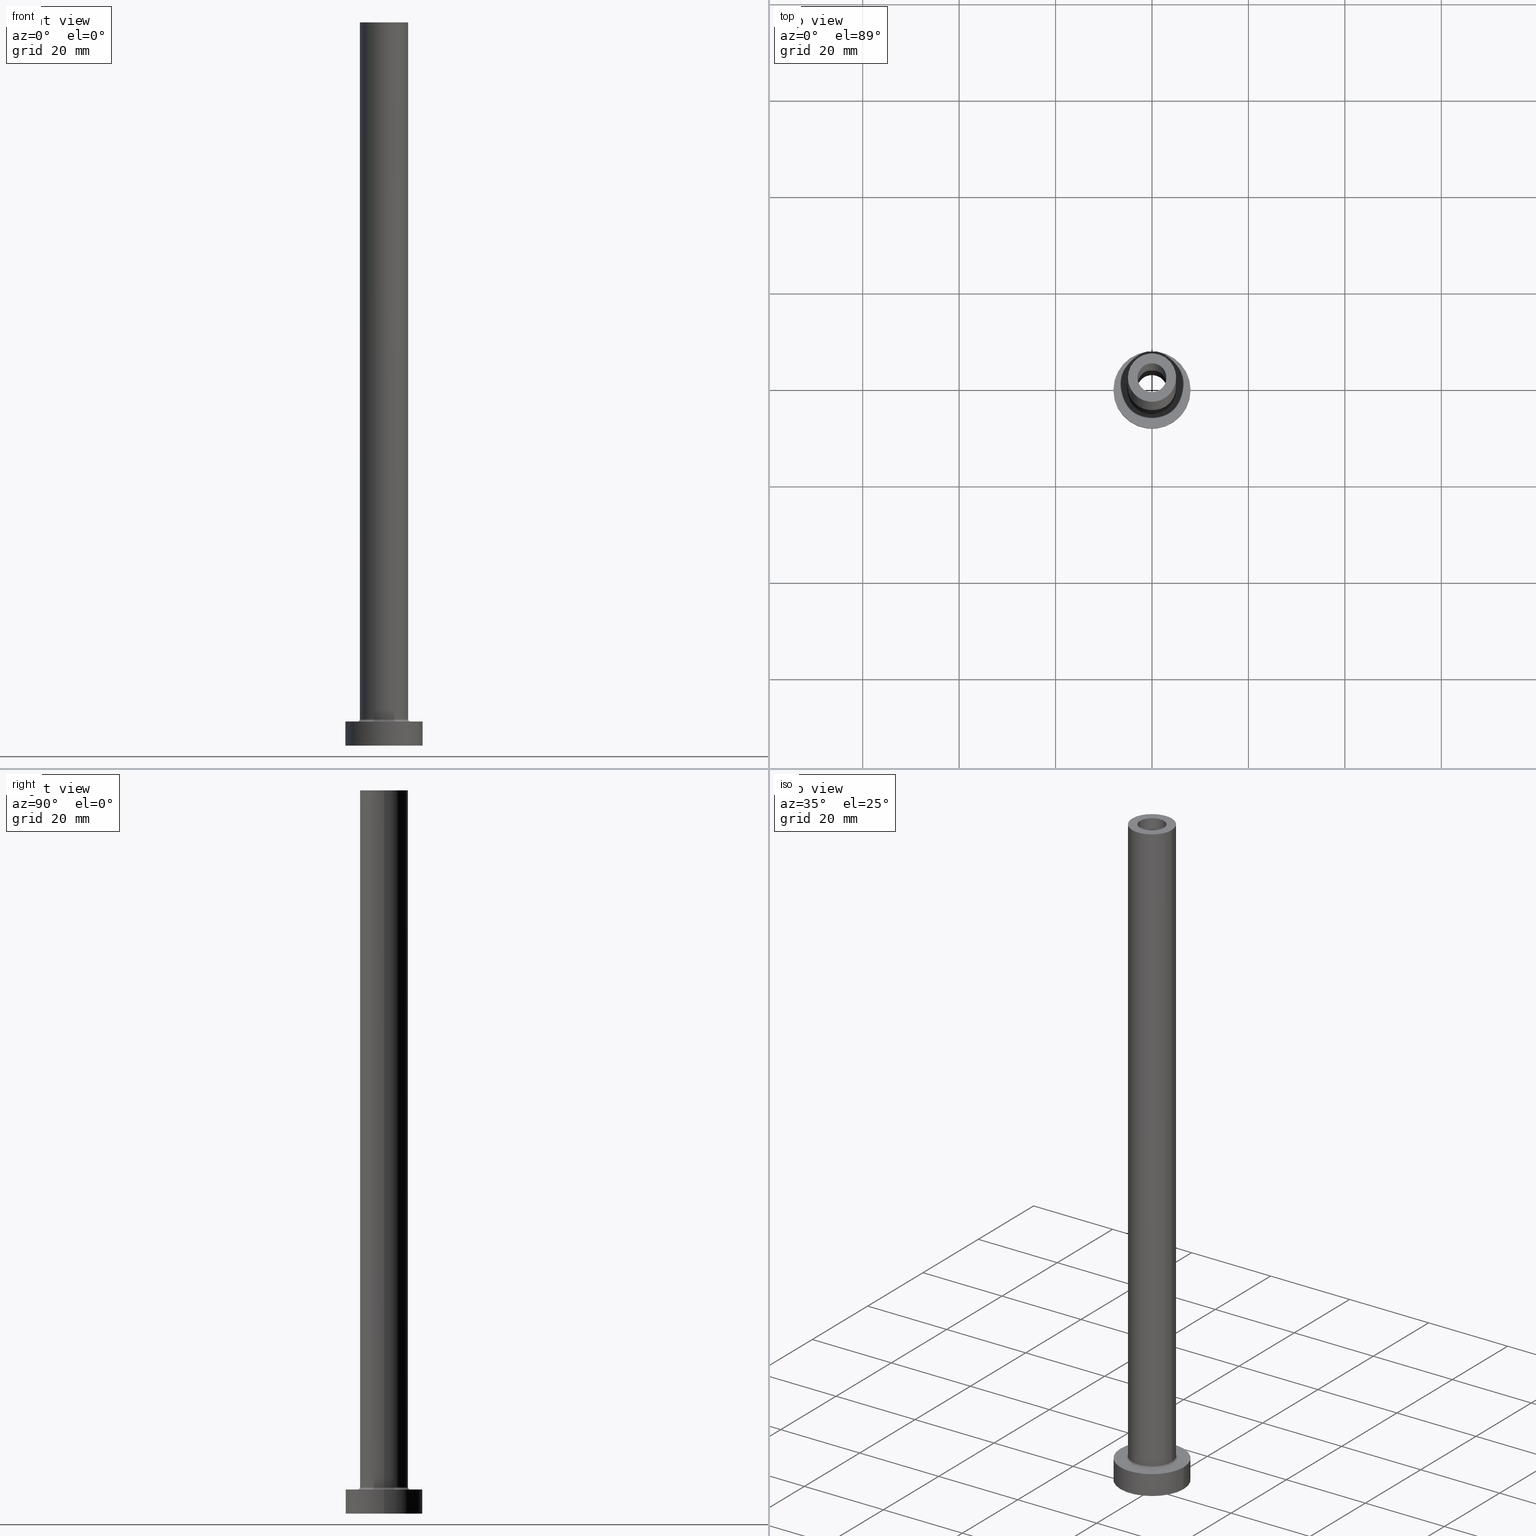
[diagram: canonical four-view strip — front | top / right | iso, engineering-drawing reading convention]
A machine part, canonical four-view strip (front | top / right | iso — engineering-drawing reading convention). The complete STEP part file that produces these views, byte-faithful:
ISO-10303-21;
HEADER;
FILE_DESCRIPTION (( 'STEP AP203' ),
    '1' );
FILE_NAME ('c2c9.STEP',
    '2023-02-13T10:09:58',
    ( '' ),
    ( '' ),
    'SwSTEP 2.0',
    'SolidWorks 2019',
    '' );
FILE_SCHEMA (( 'CONFIG_CONTROL_DESIGN' ));
ENDSEC;

DATA;
#1 = DIRECTION ( 'NONE',  ( 1.000000000000000000, 0.000000000000000000, 0.000000000000000000 ) ) ;
#2 = CARTESIAN_POINT ( 'NONE',  ( -3.150000000000000355, 0.000000000000000000, 0.000000000000000000 ) ) ;
#3 = EDGE_CURVE ( 'NONE', #65, #243, #122, .T. ) ;
#4 = CARTESIAN_POINT ( 'NONE',  ( 0.000000000000000000, 0.000000000000000000, 0.000000000000000000 ) ) ;
#5 = CARTESIAN_POINT ( 'NONE',  ( 5.000000000000000000, 6.123233995736766282E-16, 150.0000000000000000 ) ) ;
#6 = AXIS2_PLACEMENT_3D ( 'NONE', #124, #284, #131 ) ;
#7 = LOCAL_TIME ( 11, 9, 58.00000000000000000, #310 ) ;
#8 = CARTESIAN_POINT ( 'NONE',  ( 8.000000000000000000, 9.797174393178825657E-16, 5.000000000000000000 ) ) ;
#9 = EDGE_LOOP ( 'NONE', ( #267, #20 ) ) ;
#10 = EDGE_LOOP ( 'NONE', ( #296, #393, #386, #280 ) ) ;
#11 = ADVANCED_FACE ( 'NONE', ( #137 ), #366, .F. ) ;
#12 = APPLICATION_CONTEXT ( 'configuration controlled 3d designs of mechanical parts and assemblies' ) ;
#13 = AXIS2_PLACEMENT_3D ( 'NONE', #428, #215, #355 ) ;
#14 =( GEOMETRIC_REPRESENTATION_CONTEXT ( 3 ) GLOBAL_UNCERTAINTY_ASSIGNED_CONTEXT ( ( #92 ) ) GLOBAL_UNIT_ASSIGNED_CONTEXT ( ( #454, #237, #254 ) ) REPRESENTATION_CONTEXT ( 'NONE', 'WORKASPACE' ) );
#15 = CARTESIAN_POINT ( 'NONE',  ( 3.150000000000000355, 3.857637417314162196E-16, 0.000000000000000000 ) ) ;
#16 = ORIENTED_EDGE ( 'NONE', *, *, #165, .T. ) ;
#17 = CC_DESIGN_PERSON_AND_ORGANIZATION_ASSIGNMENT ( #374, #411, ( #340 ) ) ;
#18 = PERSON_AND_ORGANIZATION_ROLE ( 'design_supplier' ) ;
#19 = DIRECTION ( 'NONE',  ( 1.000000000000000000, 0.000000000000000000, -0.000000000000000000 ) ) ;
#20 = ORIENTED_EDGE ( 'NONE', *, *, #107, .F. ) ;
#21 = PRODUCT_DEFINITION ( 'NEZN�M�', '', #414, #364 ) ;
#22 = PLANE ( 'NONE',  #114 ) ;
#23 = ORIENTED_EDGE ( 'NONE', *, *, #234, .T. ) ;
#24 = ORIENTED_EDGE ( 'NONE', *, *, #99, .F. ) ;
#25 = EDGE_LOOP ( 'NONE', ( #133, #76, #277, #391 ) ) ;
#26 = CIRCLE ( 'NONE', #149, 5.500000000000000000 ) ;
#27 = AXIS2_PLACEMENT_3D ( 'NONE', #334, #203, #74 ) ;
#28 = CARTESIAN_POINT ( 'NONE',  ( 0.000000000000000000, 0.000000000000000000, 150.0000000000000000 ) ) ;
#29 = CARTESIAN_POINT ( 'NONE',  ( 0.000000000000000000, 0.000000000000000000, 0.000000000000000000 ) ) ;
#30 = DIRECTION ( 'NONE',  ( -0.000000000000000000, -0.000000000000000000, -1.000000000000000000 ) ) ;
#31 = EDGE_LOOP ( 'NONE', ( #447, #357, #349, #370 ) ) ;
#32 = DIRECTION ( 'NONE',  ( 0.000000000000000000, 0.000000000000000000, 1.000000000000000000 ) ) ;
#33 = AXIS2_PLACEMENT_3D ( 'NONE', #40, #51, #117 ) ;
#34 = LINE ( 'NONE', #214, #442 ) ;
#35 = PLANE ( 'NONE',  #380 ) ;
#36 = LINE ( 'NONE', #279, #174 ) ;
#37 = CIRCLE ( 'NONE', #259, 8.000000000000000000 ) ;
#38 = ORIENTED_EDGE ( 'NONE', *, *, #223, .T. ) ;
#39 = ADVANCED_FACE ( 'NONE', ( #407 ), #183, .F. ) ;
#40 = CARTESIAN_POINT ( 'NONE',  ( 0.000000000000000000, 0.000000000000000000, 150.0000000000000000 ) ) ;
#41 = APPROVAL_DATE_TIME ( #427, #148 ) ;
#42 = CARTESIAN_POINT ( 'NONE',  ( -3.000000000000000444, 0.000000000000000000, 150.0000000000000000 ) ) ;
#43 = DIRECTION ( 'NONE',  ( 1.224646799147353207E-16, 1.000000000000000000, -0.000000000000000000 ) ) ;
#44 = CALENDAR_DATE ( 2023, 13, 2 ) ;
#45 = VERTEX_POINT ( 'NONE', #401 ) ;
#46 = VERTEX_POINT ( 'NONE', #367 ) ;
#47 = FACE_OUTER_BOUND ( 'NONE', #31, .T. ) ;
#48 = AXIS2_PLACEMENT_3D ( 'NONE', #399, #43, #245 ) ;
#49 = CLOSED_SHELL ( 'NONE', ( #332, #209, #11, #452, #373, #95, #415, #338, #75, #213, #39, #271, #425, #52 ) ) ;
#50 = ORIENTED_EDGE ( 'NONE', *, *, #70, .F. ) ;
#51 = DIRECTION ( 'NONE',  ( 0.000000000000000000, 0.000000000000000000, 1.000000000000000000 ) ) ;
#52 = ADVANCED_FACE ( 'NONE', ( #406 ), #53, .F. ) ;
#53 = CYLINDRICAL_SURFACE ( 'NONE', #56, 3.000000000000000444 ) ;
#54 = PLANE ( 'NONE',  #339 ) ;
#55 = CIRCLE ( 'NONE', #250, 5.000000000000000000 ) ;
#56 = AXIS2_PLACEMENT_3D ( 'NONE', #294, #444, #135 ) ;
#57 = EDGE_CURVE ( 'NONE', #177, #46, #255, .T. ) ;
#58 = DIRECTION ( 'NONE',  ( 0.000000000000000000, 0.000000000000000000, 1.000000000000000000 ) ) ;
#59 = DIRECTION ( 'NONE',  ( 0.000000000000000000, 0.000000000000000000, 1.000000000000000000 ) ) ;
#60 = ORIENTED_EDGE ( 'NONE', *, *, #139, .F. ) ;
#61 = EDGE_CURVE ( 'NONE', #232, #127, #37, .T. ) ;
#62 = AXIS2_PLACEMENT_3D ( 'NONE', #244, #85, #162 ) ;
#63 = FACE_OUTER_BOUND ( 'NONE', #97, .T. ) ;
#64 = FACE_OUTER_BOUND ( 'NONE', #202, .T. ) ;
#65 = VERTEX_POINT ( 'NONE', #241 ) ;
#66 = CYLINDRICAL_SURFACE ( 'NONE', #198, 3.150000000000000355 ) ;
#67 = COORDINATED_UNIVERSAL_TIME_OFFSET ( 1, 0, .AHEAD. ) ;
#68 = DIRECTION ( 'NONE',  ( 1.000000000000000000, 0.000000000000000000, 0.000000000000000000 ) ) ;
#69 = CALENDAR_DATE ( 2023, 13, 2 ) ;
#70 = EDGE_CURVE ( 'NONE', #143, #127, #36, .T. ) ;
#71 = AXIS2_PLACEMENT_3D ( 'NONE', #189, #73, #348 ) ;
#72 = DIRECTION ( 'NONE',  ( 0.000000000000000000, 0.000000000000000000, -1.000000000000000000 ) ) ;
#73 = DIRECTION ( 'NONE',  ( -0.000000000000000000, -0.000000000000000000, -1.000000000000000000 ) ) ;
#74 = DIRECTION ( 'NONE',  ( -1.000000000000000000, 0.000000000000000000, 0.000000000000000000 ) ) ;
#75 = ADVANCED_FACE ( 'NONE', ( #147 ), #388, .T. ) ;
#76 = ORIENTED_EDGE ( 'NONE', *, *, #234, .F. ) ;
#77 = ORIENTED_EDGE ( 'NONE', *, *, #61, .F. ) ;
#78 = CARTESIAN_POINT ( 'NONE',  ( 3.000000000000000444, 3.673940397442059868E-16, 150.0000000000000000 ) ) ;
#79 = CIRCLE ( 'NONE', #158, 3.000000000000000444 ) ;
#80 = CALENDAR_DATE ( 2023, 13, 2 ) ;
#81 = CC_DESIGN_SECURITY_CLASSIFICATION ( #340, ( #414 ) ) ;
#82 = CARTESIAN_POINT ( 'NONE',  ( 0.000000000000000000, 0.000000000000000000, 5.500000000000005329 ) ) ;
#83 = DIRECTION ( 'NONE',  ( -1.000000000000000000, 0.000000000000000000, 0.000000000000000000 ) ) ;
#84 = VERTEX_POINT ( 'NONE', #42 ) ;
#85 = DIRECTION ( 'NONE',  ( 0.000000000000000000, 0.000000000000000000, 1.000000000000000000 ) ) ;
#86 = CARTESIAN_POINT ( 'NONE',  ( 0.000000000000000000, 0.000000000000000000, 0.000000000000000000 ) ) ;
#87 = ORIENTED_EDGE ( 'NONE', *, *, #179, .F. ) ;
#88 = FACE_OUTER_BOUND ( 'NONE', #303, .T. ) ;
#89 = CARTESIAN_POINT ( 'NONE',  ( -3.150000000000000355, 0.000000000000000000, 113.9095454429505025 ) ) ;
#90 = PERSON ( 'NEUR�EN�', 'NEUR�EN�', 'NEUR�EN�', ('NEUR�EN�'), ('NEUR�EN�'), ('NEUR�EN�') ) ;
#91 = DIRECTION ( 'NONE',  ( 0.000000000000000000, 0.000000000000000000, -1.000000000000000000 ) ) ;
#92 = UNCERTAINTY_MEASURE_WITH_UNIT (LENGTH_MEASURE( 1.000000000000000082E-05 ), #454, 'distance_accuracy_value', 'NONE');
#93 = DIRECTION ( 'NONE',  ( 0.000000000000000000, 0.000000000000000000, 1.000000000000000000 ) ) ;
#94 = ORIENTED_EDGE ( 'NONE', *, *, #448, .T. ) ;
#95 = ADVANCED_FACE ( 'NONE', ( #419 ), #282, .T. ) ;
#96 = LOCAL_TIME ( 11, 9, 58.00000000000000000, #67 ) ;
#97 = EDGE_LOOP ( 'NONE', ( #342, #287, #102, #458 ) ) ;
#98 = AXIS2_PLACEMENT_3D ( 'NONE', #397, #167, #408 ) ;
#99 = EDGE_CURVE ( 'NONE', #461, #143, #298, .T. ) ;
#100 = AXIS2_PLACEMENT_3D ( 'NONE', #219, #119, #359 ) ;
#101 = DIRECTION ( 'NONE',  ( 1.000000000000000000, 0.000000000000000000, 0.000000000000000000 ) ) ;
#102 = ORIENTED_EDGE ( 'NONE', *, *, #128, .T. ) ;
#103 = ORIENTED_EDGE ( 'NONE', *, *, #440, .T. ) ;
#104 = DIRECTION ( 'NONE',  ( 0.000000000000000000, 0.000000000000000000, 1.000000000000000000 ) ) ;
#105 = SECURITY_CLASSIFICATION_LEVEL ( 'unclassified' ) ;
#106 = DIRECTION ( 'NONE',  ( 1.000000000000000000, 0.000000000000000000, 0.000000000000000000 ) ) ;
#107 = EDGE_CURVE ( 'NONE', #356, #274, #231, .T. ) ;
#108 = CARTESIAN_POINT ( 'NONE',  ( -5.500000000000000000, 6.735557395310442023E-16, 5.000000000000002665 ) ) ;
#109 = AXIS2_PLACEMENT_3D ( 'NONE', #82, #385, #313 ) ;
#110 = ORIENTED_EDGE ( 'NONE', *, *, #139, .T. ) ;
#111 = ADVANCED_BREP_SHAPE_REPRESENTATION ( 'c2c9', ( #362, #410 ), #14 ) ;
#112 = EDGE_CURVE ( 'NONE', #329, #145, #123, .T. ) ;
#113 = COORDINATED_UNIVERSAL_TIME_OFFSET ( 1, 0, .AHEAD. ) ;
#114 = AXIS2_PLACEMENT_3D ( 'NONE', #28, #331, #305 ) ;
#115 = EDGE_LOOP ( 'NONE', ( #38, #416, #60, #208 ) ) ;
#116 = PERSON_AND_ORGANIZATION ( #90, #166 ) ;
#117 = DIRECTION ( 'NONE',  ( 1.000000000000000000, 0.000000000000000000, 0.000000000000000000 ) ) ;
#118 = PERSON_AND_ORGANIZATION_ROLE ( 'creator' ) ;
#119 = DIRECTION ( 'NONE',  ( 0.000000000000000000, -1.000000000000000000, 0.000000000000000000 ) ) ;
#120 = FACE_BOUND ( 'NONE', #9, .T. ) ;
#121 = APPROVAL_PERSON_ORGANIZATION ( #116, #148, #247 ) ;
#122 = CIRCLE ( 'NONE', #98, 5.500000000000000000 ) ;
#123 = LINE ( 'NONE', #341, #449 ) ;
#124 = CARTESIAN_POINT ( 'NONE',  ( 0.000000000000000000, 0.000000000000000000, 105.0000000000000000 ) ) ;
#125 = DIRECTION ( 'NONE',  ( 1.000000000000000000, 0.000000000000000000, 0.000000000000000000 ) ) ;
#126 = APPLICATION_PROTOCOL_DEFINITION ( 'international standard', 'config_control_design', 1994, #12 ) ;
#127 = VERTEX_POINT ( 'NONE', #316 ) ;
#128 = EDGE_CURVE ( 'NONE', #145, #222, #173, .T. ) ;
#129 = DATE_AND_TIME ( #80, #235 ) ;
#130 = CARTESIAN_POINT ( 'NONE',  ( 0.000000000000000000, 0.000000000000000000, 5.000000000000000000 ) ) ;
#131 = DIRECTION ( 'NONE',  ( 1.000000000000000000, 0.000000000000000000, 0.000000000000000000 ) ) ;
#132 = AXIS2_PLACEMENT_3D ( 'NONE', #383, #91, #346 ) ;
#133 = ORIENTED_EDGE ( 'NONE', *, *, #112, .F. ) ;
#134 = EDGE_CURVE ( 'NONE', #274, #356, #142, .T. ) ;
#135 = DIRECTION ( 'NONE',  ( -1.000000000000000000, 0.000000000000000000, 0.000000000000000000 ) ) ;
#136 = FACE_OUTER_BOUND ( 'NONE', #210, .T. ) ;
#137 = FACE_OUTER_BOUND ( 'NONE', #372, .T. ) ;
#138 = ORIENTED_EDGE ( 'NONE', *, *, #321, .T. ) ;
#139 = EDGE_CURVE ( 'NONE', #45, #46, #242, .T. ) ;
#140 = DIRECTION ( 'NONE',  ( 1.000000000000000000, 0.000000000000000000, 0.000000000000000000 ) ) ;
#141 = APPROVAL_ROLE ( '' ) ;
#142 = CIRCLE ( 'NONE', #320, 3.150000000000000355 ) ;
#143 = VERTEX_POINT ( 'NONE', #8 ) ;
#144 = EDGE_CURVE ( 'NONE', #461, #232, #319, .T. ) ;
#145 = VERTEX_POINT ( 'NONE', #281 ) ;
#146 = FACE_BOUND ( 'NONE', #450, .T. ) ;
#147 = FACE_OUTER_BOUND ( 'NONE', #25, .T. ) ;
#148 = APPROVAL ( #220, 'NEUR�EN�' ) ;
#149 = AXIS2_PLACEMENT_3D ( 'NONE', #350, #314, #240 ) ;
#150 = AXIS2_PLACEMENT_3D ( 'NONE', #369, #161, #101 ) ;
#151 = DIRECTION ( 'NONE',  ( 1.000000000000000000, 0.000000000000000000, 0.000000000000000000 ) ) ;
#152 = ORIENTED_EDGE ( 'NONE', *, *, #99, .T. ) ;
#153 = DIRECTION ( 'NONE',  ( -0.000000000000000000, -0.000000000000000000, -1.000000000000000000 ) ) ;
#154 = FACE_OUTER_BOUND ( 'NONE', #394, .T. ) ;
#155 = DIRECTION ( 'NONE',  ( -0.000000000000000000, -0.000000000000000000, -1.000000000000000000 ) ) ;
#156 = ORIENTED_EDGE ( 'NONE', *, *, #377, .F. ) ;
#157 = PERSON_AND_ORGANIZATION ( #90, #166 ) ;
#158 = AXIS2_PLACEMENT_3D ( 'NONE', #261, #336, #68 ) ;
#159 = PERSON_AND_ORGANIZATION ( #90, #166 ) ;
#160 = EDGE_CURVE ( 'NONE', #329, #325, #351, .T. ) ;
#161 = DIRECTION ( 'NONE',  ( 0.000000000000000000, 0.000000000000000000, 1.000000000000000000 ) ) ;
#162 = DIRECTION ( 'NONE',  ( 1.000000000000000000, 0.000000000000000000, 0.000000000000000000 ) ) ;
#163 = APPROVAL_DATE_TIME ( #312, #306 ) ;
#164 = PERSON_AND_ORGANIZATION ( #90, #166 ) ;
#165 = EDGE_CURVE ( 'NONE', #177, #84, #236, .T. ) ;
#166 = ORGANIZATION ( 'NEUR�EN�', 'NEUR�EN�', '' ) ;
#167 = DIRECTION ( 'NONE',  ( -0.000000000000000000, -0.000000000000000000, -1.000000000000000000 ) ) ;
#168 = AXIS2_PLACEMENT_3D ( 'NONE', #86, #432, #459 ) ;
#169 = EDGE_CURVE ( 'NONE', #243, #65, #26, .T. ) ;
#170 = DIRECTION ( 'NONE',  ( 0.000000000000000000, 0.000000000000000000, 1.000000000000000000 ) ) ;
#171 = ORIENTED_EDGE ( 'NONE', *, *, #405, .F. ) ;
#172 = EDGE_CURVE ( 'NONE', #127, #232, #283, .T. ) ;
#173 = CIRCLE ( 'NONE', #109, 5.000000000000000000 ) ;
#174 = VECTOR ( 'NONE', #307, 1000.000000000000000 ) ;
#175 = APPLICATION_CONTEXT ( 'configuration controlled 3d designs of mechanical parts and assemblies' ) ;
#176 = CARTESIAN_POINT ( 'NONE',  ( 0.000000000000000000, 0.000000000000000000, 150.0000000000000000 ) ) ;
#177 = VERTEX_POINT ( 'NONE', #78 ) ;
#178 = DIRECTION ( 'NONE',  ( 1.000000000000000000, 0.000000000000000000, 0.000000000000000000 ) ) ;
#179 = EDGE_CURVE ( 'NONE', #145, #65, #258, .T. ) ;
#180 = CIRCLE ( 'NONE', #48, 0.5000000000000004441 ) ;
#181 = APPROVAL_PERSON_ORGANIZATION ( #246, #306, #141 ) ;
#182 = DIRECTION ( 'NONE',  ( -1.000000000000000000, 0.000000000000000000, 0.000000000000000000 ) ) ;
#183 = TOROIDAL_SURFACE ( 'NONE', #443, 5.500000000000000000, 0.5000000000000000000 ) ;
#184 = DIRECTION ( 'NONE',  ( 0.000000000000000000, 0.000000000000000000, 1.000000000000000000 ) ) ;
#185 = ORIENTED_EDGE ( 'NONE', *, *, #191, .T. ) ;
#186 = ORIENTED_EDGE ( 'NONE', *, *, #448, .F. ) ;
#187 = CARTESIAN_POINT ( 'NONE',  ( 0.000000000000000000, 0.000000000000000000, 150.0000000000000000 ) ) ;
#188 = CARTESIAN_POINT ( 'NONE',  ( -5.000000000000000000, 0.000000000000000000, 150.0000000000000000 ) ) ;
#189 = CARTESIAN_POINT ( 'NONE',  ( 0.000000000000000000, 0.000000000000000000, 5.000000000000000000 ) ) ;
#190 = CARTESIAN_POINT ( 'NONE',  ( -8.000000000000000000, 0.000000000000000000, 5.000000000000000000 ) ) ;
#191 = EDGE_CURVE ( 'NONE', #222, #243, #180, .T. ) ;
#192 = CARTESIAN_POINT ( 'NONE',  ( -3.000000000000000444, 0.000000000000000000, 150.0000000000000000 ) ) ;
#193 = APPLICATION_PROTOCOL_DEFINITION ( 'international standard', 'config_control_design', 1994, #175 ) ;
#194 = ORIENTED_EDGE ( 'NONE', *, *, #289, .F. ) ;
#195 = PLANE ( 'NONE',  #453 ) ;
#196 = CYLINDRICAL_SURFACE ( 'NONE', #400, 3.150000000000000355 ) ;
#197 = AXIS2_PLACEMENT_3D ( 'NONE', #390, #308, #125 ) ;
#198 = AXIS2_PLACEMENT_3D ( 'NONE', #278, #345, #182 ) ;
#199 = EDGE_LOOP ( 'NONE', ( #252, #16, #260, #268 ) ) ;
#200 = MECHANICAL_CONTEXT ( 'NONE', #175, 'mechanical' ) ;
#201 = CARTESIAN_POINT ( 'NONE',  ( 0.000000000000000000, 0.000000000000000000, 5.500000000000005329 ) ) ;
#202 = EDGE_LOOP ( 'NONE', ( #194, #138, #273, #456 ) ) ;
#203 = DIRECTION ( 'NONE',  ( -0.000000000000000000, -0.000000000000000000, -1.000000000000000000 ) ) ;
#204 = EDGE_CURVE ( 'NONE', #376, #274, #396, .T. ) ;
#205 = CC_DESIGN_APPROVAL ( #306, ( #21 ) ) ;
#206 = CYLINDRICAL_SURFACE ( 'NONE', #27, 5.000000000000000000 ) ;
#207 = DIRECTION ( 'NONE',  ( 1.000000000000000000, 0.000000000000000000, 0.000000000000000000 ) ) ;
#208 = ORIENTED_EDGE ( 'NONE', *, *, #347, .F. ) ;
#209 = ADVANCED_FACE ( 'NONE', ( #47 ), #196, .F. ) ;
#210 = EDGE_LOOP ( 'NONE', ( #186, #333, #335, #251 ) ) ;
#211 = CARTESIAN_POINT ( 'NONE',  ( 0.000000000000000000, 0.000000000000000000, 5.000000000000000000 ) ) ;
#212 = CARTESIAN_POINT ( 'NONE',  ( -8.000000000000000000, 0.000000000000000000, 0.000000000000000000 ) ) ;
#213 = ADVANCED_FACE ( 'NONE', ( #146, #343 ), #22, .T. ) ;
#214 = CARTESIAN_POINT ( 'NONE',  ( -5.000000000000000000, 0.000000000000000000, 150.0000000000000000 ) ) ;
#215 = DIRECTION ( 'NONE',  ( 0.000000000000000000, 0.000000000000000000, 1.000000000000000000 ) ) ;
#216 = VECTOR ( 'NONE', #363, 1000.000000000000000 ) ;
#217 = CARTESIAN_POINT ( 'NONE',  ( 0.000000000000000000, 0.000000000000000000, 0.000000000000000000 ) ) ;
#218 = LOCAL_TIME ( 11, 9, 58.00000000000000000, #113 ) ;
#219 = CARTESIAN_POINT ( 'NONE',  ( 5.500000000000000000, 0.000000000000000000, 5.500000000000005329 ) ) ;
#220 = APPROVAL_STATUS ( 'not_yet_approved' ) ;
#221 = AXIS2_PLACEMENT_3D ( 'NONE', #317, #32, #178 ) ;
#222 = VERTEX_POINT ( 'NONE', #301 ) ;
#223 = EDGE_CURVE ( 'NONE', #84, #177, #302, .T. ) ;
#224 = COORDINATED_UNIVERSAL_TIME_OFFSET ( 1, 0, .AHEAD. ) ;
#225 = CARTESIAN_POINT ( 'NONE',  ( 0.000000000000000000, 0.000000000000000000, 0.000000000000000000 ) ) ;
#226 = ORIENTED_EDGE ( 'NONE', *, *, #3, .F. ) ;
#227 = DIRECTION ( 'NONE',  ( 0.000000000000000000, 0.000000000000000000, -1.000000000000000000 ) ) ;
#228 = VECTOR ( 'NONE', #227, 1000.000000000000000 ) ;
#229 = PERSON_AND_ORGANIZATION ( #90, #166 ) ;
#230 = AXIS2_PLACEMENT_3D ( 'NONE', #4, #155, #434 ) ;
#231 = CIRCLE ( 'NONE', #230, 3.150000000000000355 ) ;
#232 = VERTEX_POINT ( 'NONE', #212 ) ;
#233 = CARTESIAN_POINT ( 'NONE',  ( 3.150000000000000355, 3.857637417314162196E-16, 105.0000000000000000 ) ) ;
#234 = EDGE_CURVE ( 'NONE', #325, #329, #55, .T. ) ;
#235 = LOCAL_TIME ( 11, 9, 58.00000000000000000, #224 ) ;
#236 = CIRCLE ( 'NONE', #33, 3.000000000000000444 ) ;
#237 =( NAMED_UNIT ( * ) PLANE_ANGLE_UNIT ( ) SI_UNIT ( $, .RADIAN. ) );
#238 = CC_DESIGN_PERSON_AND_ORGANIZATION_ASSIGNMENT ( #159, #436, ( #446 ) ) ;
#239 = CARTESIAN_POINT ( 'NONE',  ( 0.000000000000000000, 0.000000000000000000, 150.0000000000000000 ) ) ;
#240 = DIRECTION ( 'NONE',  ( 1.000000000000000000, 0.000000000000000000, 0.000000000000000000 ) ) ;
#241 = CARTESIAN_POINT ( 'NONE',  ( 5.500000000000000000, 0.000000000000000000, 5.000000000000002665 ) ) ;
#242 = CIRCLE ( 'NONE', #197, 3.000000000000000444 ) ;
#243 = VERTEX_POINT ( 'NONE', #108 ) ;
#244 = CARTESIAN_POINT ( 'NONE',  ( 0.000000000000000000, 0.000000000000000000, 5.500000000000005329 ) ) ;
#245 = DIRECTION ( 'NONE',  ( -1.000000000000000000, 1.224646799147351482E-16, 0.000000000000000000 ) ) ;
#246 = PERSON_AND_ORGANIZATION ( #90, #166 ) ;
#247 = APPROVAL_ROLE ( '' ) ;
#248 = DATE_AND_TIME ( #44, #297 ) ;
#249 = VERTEX_POINT ( 'NONE', #233 ) ;
#250 = AXIS2_PLACEMENT_3D ( 'NONE', #176, #170, #207 ) ;
#251 = ORIENTED_EDGE ( 'NONE', *, *, #144, .F. ) ;
#252 = ORIENTED_EDGE ( 'NONE', *, *, #57, .F. ) ;
#253 = DIRECTION ( 'NONE',  ( 1.000000000000000000, 0.000000000000000000, -0.000000000000000000 ) ) ;
#254 =( NAMED_UNIT ( * ) SI_UNIT ( $, .STERADIAN. ) SOLID_ANGLE_UNIT ( ) );
#255 = LINE ( 'NONE', #344, #304 ) ;
#256 = CC_DESIGN_DATE_AND_TIME_ASSIGNMENT ( #129, #438, ( #340 ) ) ;
#257 = EDGE_LOOP ( 'NONE', ( #156, #361 ) ) ;
#258 = CIRCLE ( 'NONE', #100, 0.5000000000000004441 ) ;
#259 = AXIS2_PLACEMENT_3D ( 'NONE', #455, #426, #151 ) ;
#260 = ORIENTED_EDGE ( 'NONE', *, *, #347, .T. ) ;
#261 = CARTESIAN_POINT ( 'NONE',  ( 0.000000000000000000, 0.000000000000000000, 105.0000000000000000 ) ) ;
#262 = PRODUCT_RELATED_PRODUCT_CATEGORY ( 'detail', '', ( #446 ) ) ;
#263 = CARTESIAN_POINT ( 'NONE',  ( 0.000000000000000000, 0.000000000000000000, 150.0000000000000000 ) ) ;
#264 = DATE_AND_TIME ( #300, #218 ) ;
#265 = CIRCLE ( 'NONE', #6, 3.150000000000000355 ) ;
#266 = CC_DESIGN_APPROVAL ( #457, ( #414 ) ) ;
#267 = ORIENTED_EDGE ( 'NONE', *, *, #134, .F. ) ;
#268 = ORIENTED_EDGE ( 'NONE', *, *, #440, .F. ) ;
#269 = DIRECTION ( 'NONE',  ( 0.000000000000000000, 0.000000000000000000, 1.000000000000000000 ) ) ;
#270 = APPROVAL_ROLE ( '' ) ;
#271 = ADVANCED_FACE ( 'NONE', ( #64 ), #66, .F. ) ;
#272 = CARTESIAN_POINT ( 'NONE',  ( 3.150000000000000355, 3.857637417314162196E-16, 113.9095454429505025 ) ) ;
#273 = ORIENTED_EDGE ( 'NONE', *, *, #204, .T. ) ;
#274 = VERTEX_POINT ( 'NONE', #2 ) ;
#275 = CYLINDRICAL_SURFACE ( 'NONE', #132, 3.000000000000000444 ) ;
#276 = DIRECTION ( 'NONE',  ( 0.000000000000000000, 0.000000000000000000, -1.000000000000000000 ) ) ;
#277 = ORIENTED_EDGE ( 'NONE', *, *, #309, .T. ) ;
#278 = CARTESIAN_POINT ( 'NONE',  ( 0.000000000000000000, 0.000000000000000000, 113.9095454429505025 ) ) ;
#279 = CARTESIAN_POINT ( 'NONE',  ( 8.000000000000000000, 9.797174393178825657E-16, 5.000000000000000000 ) ) ;
#280 = ORIENTED_EDGE ( 'NONE', *, *, #169, .F. ) ;
#281 = CARTESIAN_POINT ( 'NONE',  ( 5.000000000000000000, 6.123233995736766282E-16, 5.500000000000005329 ) ) ;
#282 = CYLINDRICAL_SURFACE ( 'NONE', #71, 8.000000000000000000 ) ;
#283 = CIRCLE ( 'NONE', #168, 8.000000000000000000 ) ;
#284 = DIRECTION ( 'NONE',  ( 0.000000000000000000, 0.000000000000000000, 1.000000000000000000 ) ) ;
#285 = CARTESIAN_POINT ( 'NONE',  ( -8.000000000000000000, 0.000000000000000000, 5.000000000000000000 ) ) ;
#286 = PERSON_AND_ORGANIZATION_ROLE ( 'creator' ) ;
#287 = ORIENTED_EDGE ( 'NONE', *, *, #112, .T. ) ;
#288 = DIRECTION ( 'NONE',  ( 1.000000000000000000, 0.000000000000000000, 0.000000000000000000 ) ) ;
#289 = EDGE_CURVE ( 'NONE', #249, #356, #382, .T. ) ;
#290 = DIRECTION ( 'NONE',  ( 0.000000000000000000, 0.000000000000000000, -1.000000000000000000 ) ) ;
#291 = CYLINDRICAL_SURFACE ( 'NONE', #422, 8.000000000000000000 ) ;
#292 = DATE_TIME_ROLE ( 'creation_date' ) ;
#293 = VECTOR ( 'NONE', #72, 1000.000000000000000 ) ;
#294 = CARTESIAN_POINT ( 'NONE',  ( 0.000000000000000000, 0.000000000000000000, 150.0000000000000000 ) ) ;
#295 = CC_DESIGN_PERSON_AND_ORGANIZATION_ASSIGNMENT ( #429, #118, ( #414 ) ) ;
#296 = ORIENTED_EDGE ( 'NONE', *, *, #191, .F. ) ;
#297 = LOCAL_TIME ( 11, 9, 58.00000000000000000, #435 ) ;
#298 = CIRCLE ( 'NONE', #221, 8.000000000000000000 ) ;
#299 = ORIENTED_EDGE ( 'NONE', *, *, #223, .F. ) ;
#300 = CALENDAR_DATE ( 2023, 13, 2 ) ;
#301 = CARTESIAN_POINT ( 'NONE',  ( -5.000000000000000000, 0.000000000000000000, 5.500000000000005329 ) ) ;
#302 = CIRCLE ( 'NONE', #413, 3.000000000000000444 ) ;
#303 = EDGE_LOOP ( 'NONE', ( #152, #94 ) ) ;
#304 = VECTOR ( 'NONE', #276, 1000.000000000000000 ) ;
#305 = DIRECTION ( 'NONE',  ( 1.000000000000000000, 0.000000000000000000, -0.000000000000000000 ) ) ;
#306 = APPROVAL ( #423, 'NEUR�EN�' ) ;
#307 = DIRECTION ( 'NONE',  ( -0.000000000000000000, -0.000000000000000000, -1.000000000000000000 ) ) ;
#308 = DIRECTION ( 'NONE',  ( 0.000000000000000000, 0.000000000000000000, 1.000000000000000000 ) ) ;
#309 = EDGE_CURVE ( 'NONE', #325, #222, #34, .T. ) ;
#310 = COORDINATED_UNIVERSAL_TIME_OFFSET ( 1, 0, .AHEAD. ) ;
#311 = DIRECTION ( 'NONE',  ( 1.000000000000000000, 0.000000000000000000, -0.000000000000000000 ) ) ;
#312 = DATE_AND_TIME ( #69, #96 ) ;
#313 = DIRECTION ( 'NONE',  ( 1.000000000000000000, 0.000000000000000000, 0.000000000000000000 ) ) ;
#314 = DIRECTION ( 'NONE',  ( -0.000000000000000000, -0.000000000000000000, -1.000000000000000000 ) ) ;
#315 = SHAPE_DEFINITION_REPRESENTATION ( #451, #111 ) ;
#316 = CARTESIAN_POINT ( 'NONE',  ( 8.000000000000000000, 9.797174393178825657E-16, 0.000000000000000000 ) ) ;
#317 = CARTESIAN_POINT ( 'NONE',  ( 0.000000000000000000, 0.000000000000000000, 5.000000000000000000 ) ) ;
#318 = CARTESIAN_POINT ( 'NONE',  ( -3.150000000000000355, 0.000000000000000000, 105.0000000000000000 ) ) ;
#319 = LINE ( 'NONE', #285, #330 ) ;
#320 = AXIS2_PLACEMENT_3D ( 'NONE', #217, #352, #431 ) ;
#321 = EDGE_CURVE ( 'NONE', #249, #376, #365, .T. ) ;
#322 = ORIENTED_EDGE ( 'NONE', *, *, #160, .T. ) ;
#323 = DIRECTION ( 'NONE',  ( -1.000000000000000000, 0.000000000000000000, 0.000000000000000000 ) ) ;
#324 = CARTESIAN_POINT ( 'NONE',  ( 0.000000000000000000, 0.000000000000000000, 113.9095454429505025 ) ) ;
#325 = VERTEX_POINT ( 'NONE', #188 ) ;
#326 = CARTESIAN_POINT ( 'NONE',  ( 0.000000000000000000, 0.000000000000000000, 105.0000000000000000 ) ) ;
#327 = CIRCLE ( 'NONE', #409, 8.000000000000000000 ) ;
#328 = CC_DESIGN_DATE_AND_TIME_ASSIGNMENT ( #248, #292, ( #21 ) ) ;
#329 = VERTEX_POINT ( 'NONE', #5 ) ;
#330 = VECTOR ( 'NONE', #153, 1000.000000000000000 ) ;
#331 = DIRECTION ( 'NONE',  ( 0.000000000000000000, 0.000000000000000000, 1.000000000000000000 ) ) ;
#332 = ADVANCED_FACE ( 'NONE', ( #421 ), #275, .F. ) ;
#333 = ORIENTED_EDGE ( 'NONE', *, *, #70, .T. ) ;
#334 = CARTESIAN_POINT ( 'NONE',  ( 0.000000000000000000, 0.000000000000000000, 150.0000000000000000 ) ) ;
#335 = ORIENTED_EDGE ( 'NONE', *, *, #172, .T. ) ;
#336 = DIRECTION ( 'NONE',  ( 0.000000000000000000, 0.000000000000000000, 1.000000000000000000 ) ) ;
#337 = ORIENTED_EDGE ( 'NONE', *, *, #165, .F. ) ;
#338 = ADVANCED_FACE ( 'NONE', ( #120, #154 ), #35, .F. ) ;
#339 = AXIS2_PLACEMENT_3D ( 'NONE', #326, #104, #19 ) ;
#340 = SECURITY_CLASSIFICATION ( '', '', #105 ) ;
#341 = CARTESIAN_POINT ( 'NONE',  ( 5.000000000000000000, 6.123233995736766282E-16, 150.0000000000000000 ) ) ;
#342 = ORIENTED_EDGE ( 'NONE', *, *, #160, .F. ) ;
#343 = FACE_OUTER_BOUND ( 'NONE', #420, .T. ) ;
#344 = CARTESIAN_POINT ( 'NONE',  ( 3.000000000000000444, 3.673940397442059868E-16, 150.0000000000000000 ) ) ;
#345 = DIRECTION ( 'NONE',  ( 0.000000000000000000, 0.000000000000000000, -1.000000000000000000 ) ) ;
#346 = DIRECTION ( 'NONE',  ( -1.000000000000000000, 0.000000000000000000, 0.000000000000000000 ) ) ;
#347 = EDGE_CURVE ( 'NONE', #84, #45, #360, .T. ) ;
#348 = DIRECTION ( 'NONE',  ( -1.000000000000000000, 0.000000000000000000, 0.000000000000000000 ) ) ;
#349 = ORIENTED_EDGE ( 'NONE', *, *, #107, .T. ) ;
#350 = CARTESIAN_POINT ( 'NONE',  ( 0.000000000000000000, 0.000000000000000000, 5.000000000000000000 ) ) ;
#351 = CIRCLE ( 'NONE', #387, 5.000000000000000000 ) ;
#352 = DIRECTION ( 'NONE',  ( -0.000000000000000000, -0.000000000000000000, -1.000000000000000000 ) ) ;
#353 = CALENDAR_DATE ( 2023, 13, 2 ) ;
#354 = DIRECTION ( 'NONE',  ( -0.000000000000000000, -0.000000000000000000, -1.000000000000000000 ) ) ;
#355 = DIRECTION ( 'NONE',  ( 1.000000000000000000, 0.000000000000000000, 0.000000000000000000 ) ) ;
#356 = VERTEX_POINT ( 'NONE', #15 ) ;
#357 = ORIENTED_EDGE ( 'NONE', *, *, #289, .T. ) ;
#358 = FACE_BOUND ( 'NONE', #417, .T. ) ;
#359 = DIRECTION ( 'NONE',  ( 0.000000000000000000, 0.000000000000000000, -1.000000000000000000 ) ) ;
#360 = LINE ( 'NONE', #192, #216 ) ;
#361 = ORIENTED_EDGE ( 'NONE', *, *, #321, .F. ) ;
#362 = MANIFOLD_SOLID_BREP ( 'Odebrat vysunut�m4', #49 ) ;
#363 = DIRECTION ( 'NONE',  ( 0.000000000000000000, 0.000000000000000000, -1.000000000000000000 ) ) ;
#364 = DESIGN_CONTEXT ( 'detailed design', #12, 'design' ) ;
#365 = CIRCLE ( 'NONE', #13, 3.150000000000000355 ) ;
#366 = TOROIDAL_SURFACE ( 'NONE', #150, 5.500000000000000000, 0.5000000000000000000 ) ;
#367 = CARTESIAN_POINT ( 'NONE',  ( 3.000000000000000444, 3.673940397442059868E-16, 105.0000000000000000 ) ) ;
#368 = FACE_OUTER_BOUND ( 'NONE', #257, .T. ) ;
#369 = CARTESIAN_POINT ( 'NONE',  ( 0.000000000000000000, 0.000000000000000000, 5.500000000000005329 ) ) ;
#370 = ORIENTED_EDGE ( 'NONE', *, *, #204, .F. ) ;
#371 = CIRCLE ( 'NONE', #62, 5.000000000000000000 ) ;
#372 = EDGE_LOOP ( 'NONE', ( #171, #185, #226, #87 ) ) ;
#373 = ADVANCED_FACE ( 'NONE', ( #136 ), #291, .T. ) ;
#374 = PERSON_AND_ORGANIZATION ( #90, #166 ) ;
#375 = DIRECTION ( 'NONE',  ( -1.000000000000000000, 0.000000000000000000, 0.000000000000000000 ) ) ;
#376 = VERTEX_POINT ( 'NONE', #318 ) ;
#377 = EDGE_CURVE ( 'NONE', #376, #249, #265, .T. ) ;
#378 = ORIENTED_EDGE ( 'NONE', *, *, #172, .F. ) ;
#379 = APPROVAL_STATUS ( 'not_yet_approved' ) ;
#380 = AXIS2_PLACEMENT_3D ( 'NONE', #225, #184, #311 ) ;
#381 = AXIS2_PLACEMENT_3D ( 'NONE', #239, #430, #83 ) ;
#382 = LINE ( 'NONE', #272, #293 ) ;
#383 = CARTESIAN_POINT ( 'NONE',  ( 0.000000000000000000, 0.000000000000000000, 150.0000000000000000 ) ) ;
#384 = ORIENTED_EDGE ( 'NONE', *, *, #61, .T. ) ;
#385 = DIRECTION ( 'NONE',  ( 0.000000000000000000, 0.000000000000000000, 1.000000000000000000 ) ) ;
#386 = ORIENTED_EDGE ( 'NONE', *, *, #179, .T. ) ;
#387 = AXIS2_PLACEMENT_3D ( 'NONE', #187, #392, #1 ) ;
#388 = CYLINDRICAL_SURFACE ( 'NONE', #381, 5.000000000000000000 ) ;
#389 = APPROVAL_PERSON_ORGANIZATION ( #229, #457, #270 ) ;
#390 = CARTESIAN_POINT ( 'NONE',  ( 0.000000000000000000, 0.000000000000000000, 105.0000000000000000 ) ) ;
#391 = ORIENTED_EDGE ( 'NONE', *, *, #405, .T. ) ;
#392 = DIRECTION ( 'NONE',  ( 0.000000000000000000, 0.000000000000000000, 1.000000000000000000 ) ) ;
#393 = ORIENTED_EDGE ( 'NONE', *, *, #128, .F. ) ;
#394 = EDGE_LOOP ( 'NONE', ( #77, #378 ) ) ;
#395 = CC_DESIGN_PERSON_AND_ORGANIZATION_ASSIGNMENT ( #157, #286, ( #21 ) ) ;
#396 = LINE ( 'NONE', #89, #228 ) ;
#397 = CARTESIAN_POINT ( 'NONE',  ( 0.000000000000000000, 0.000000000000000000, 5.000000000000000000 ) ) ;
#398 = CARTESIAN_POINT ( 'NONE',  ( 0.000000000000000000, 0.000000000000000000, 5.000000000000000000 ) ) ;
#399 = CARTESIAN_POINT ( 'NONE',  ( -5.500000000000000000, 6.735557395310442023E-16, 5.500000000000005329 ) ) ;
#400 = AXIS2_PLACEMENT_3D ( 'NONE', #324, #290, #375 ) ;
#401 = CARTESIAN_POINT ( 'NONE',  ( -3.000000000000000444, 0.000000000000000000, 105.0000000000000000 ) ) ;
#402 = EDGE_LOOP ( 'NONE', ( #110, #103 ) ) ;
#403 = FACE_BOUND ( 'NONE', #402, .T. ) ;
#404 = CC_DESIGN_APPROVAL ( #148, ( #340 ) ) ;
#405 = EDGE_CURVE ( 'NONE', #222, #145, #371, .T. ) ;
#406 = FACE_OUTER_BOUND ( 'NONE', #199, .T. ) ;
#407 = FACE_OUTER_BOUND ( 'NONE', #10, .T. ) ;
#408 = DIRECTION ( 'NONE',  ( 1.000000000000000000, 0.000000000000000000, 0.000000000000000000 ) ) ;
#409 = AXIS2_PLACEMENT_3D ( 'NONE', #211, #59, #106 ) ;
#410 = AXIS2_PLACEMENT_3D ( 'NONE', #29, #58, #445 ) ;
#411 = PERSON_AND_ORGANIZATION_ROLE ( 'classification_officer' ) ;
#412 = APPROVAL_DATE_TIME ( #264, #457 ) ;
#413 = AXIS2_PLACEMENT_3D ( 'NONE', #263, #269, #140 ) ;
#414 = PRODUCT_DEFINITION_FORMATION_WITH_SPECIFIED_SOURCE ( 'LIBOVOLN�', '', #446, .NOT_KNOWN. ) ;
#415 = ADVANCED_FACE ( 'NONE', ( #358, #88 ), #195, .T. ) ;
#416 = ORIENTED_EDGE ( 'NONE', *, *, #57, .T. ) ;
#417 = EDGE_LOOP ( 'NONE', ( #418, #437 ) ) ;
#418 = ORIENTED_EDGE ( 'NONE', *, *, #3, .T. ) ;
#419 = FACE_OUTER_BOUND ( 'NONE', #424, .T. ) ;
#420 = EDGE_LOOP ( 'NONE', ( #23, #322 ) ) ;
#421 = FACE_OUTER_BOUND ( 'NONE', #115, .T. ) ;
#422 = AXIS2_PLACEMENT_3D ( 'NONE', #130, #441, #323 ) ;
#423 = APPROVAL_STATUS ( 'not_yet_approved' ) ;
#424 = EDGE_LOOP ( 'NONE', ( #50, #24, #460, #384 ) ) ;
#425 = ADVANCED_FACE ( 'NONE', ( #403, #368 ), #54, .F. ) ;
#426 = DIRECTION ( 'NONE',  ( 0.000000000000000000, 0.000000000000000000, 1.000000000000000000 ) ) ;
#427 = DATE_AND_TIME ( #353, #7 ) ;
#428 = CARTESIAN_POINT ( 'NONE',  ( 0.000000000000000000, 0.000000000000000000, 105.0000000000000000 ) ) ;
#429 = PERSON_AND_ORGANIZATION ( #90, #166 ) ;
#430 = DIRECTION ( 'NONE',  ( -0.000000000000000000, -0.000000000000000000, -1.000000000000000000 ) ) ;
#431 = DIRECTION ( 'NONE',  ( 1.000000000000000000, 0.000000000000000000, 0.000000000000000000 ) ) ;
#432 = DIRECTION ( 'NONE',  ( 0.000000000000000000, 0.000000000000000000, 1.000000000000000000 ) ) ;
#433 = CC_DESIGN_PERSON_AND_ORGANIZATION_ASSIGNMENT ( #164, #18, ( #414 ) ) ;
#434 = DIRECTION ( 'NONE',  ( 1.000000000000000000, 0.000000000000000000, 0.000000000000000000 ) ) ;
#435 = COORDINATED_UNIVERSAL_TIME_OFFSET ( 1, 0, .AHEAD. ) ;
#436 = PERSON_AND_ORGANIZATION_ROLE ( 'design_owner' ) ;
#437 = ORIENTED_EDGE ( 'NONE', *, *, #169, .T. ) ;
#438 = DATE_TIME_ROLE ( 'classification_date' ) ;
#439 = DIRECTION ( 'NONE',  ( 0.000000000000000000, 0.000000000000000000, 1.000000000000000000 ) ) ;
#440 = EDGE_CURVE ( 'NONE', #46, #45, #79, .T. ) ;
#441 = DIRECTION ( 'NONE',  ( -0.000000000000000000, -0.000000000000000000, -1.000000000000000000 ) ) ;
#442 = VECTOR ( 'NONE', #354, 1000.000000000000000 ) ;
#443 = AXIS2_PLACEMENT_3D ( 'NONE', #201, #93, #288 ) ;
#444 = DIRECTION ( 'NONE',  ( 0.000000000000000000, 0.000000000000000000, -1.000000000000000000 ) ) ;
#445 = DIRECTION ( 'NONE',  ( 1.000000000000000000, 0.000000000000000000, 0.000000000000000000 ) ) ;
#446 = PRODUCT ( 'c2c9', 'c2c9', '', ( #200 ) ) ;
#447 = ORIENTED_EDGE ( 'NONE', *, *, #377, .T. ) ;
#448 = EDGE_CURVE ( 'NONE', #143, #461, #327, .T. ) ;
#449 = VECTOR ( 'NONE', #30, 1000.000000000000000 ) ;
#450 = EDGE_LOOP ( 'NONE', ( #299, #337 ) ) ;
#451 = PRODUCT_DEFINITION_SHAPE ( 'NONE', 'NONE',  #21 ) ;
#452 = ADVANCED_FACE ( 'NONE', ( #63 ), #206, .T. ) ;
#453 = AXIS2_PLACEMENT_3D ( 'NONE', #398, #439, #253 ) ;
#454 =( LENGTH_UNIT ( ) NAMED_UNIT ( * ) SI_UNIT ( .MILLI., .METRE. ) );
#455 = CARTESIAN_POINT ( 'NONE',  ( 0.000000000000000000, 0.000000000000000000, 0.000000000000000000 ) ) ;
#456 = ORIENTED_EDGE ( 'NONE', *, *, #134, .T. ) ;
#457 = APPROVAL ( #379, 'NEUR�EN�' ) ;
#458 = ORIENTED_EDGE ( 'NONE', *, *, #309, .F. ) ;
#459 = DIRECTION ( 'NONE',  ( 1.000000000000000000, 0.000000000000000000, 0.000000000000000000 ) ) ;
#460 = ORIENTED_EDGE ( 'NONE', *, *, #144, .T. ) ;
#461 = VERTEX_POINT ( 'NONE', #190 ) ;
ENDSEC;
END-ISO-10303-21;
